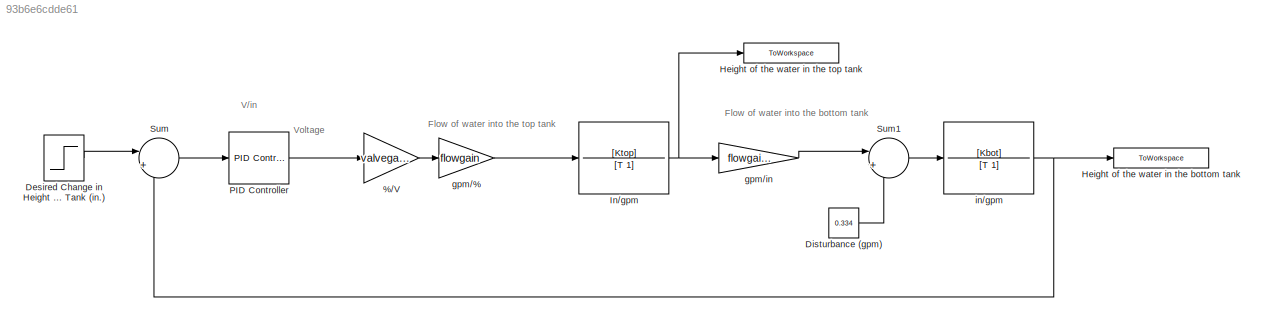
MODEL slx_93b6e6cdde61
KIND model
CONFIG AbsTol = auto
CONFIG EnableMultiTasking = off
CONFIG FixedStep = auto
CONFIG MaxStep = auto
CONFIG MinStep = auto
CONFIG RelTol = 1e-3
CONFIG SampleTimeConstraint = Unconstrained
CONFIG Solver = VariableStepAuto
CONFIG SolverName = VariableStepAuto
CONFIG StartTime = 0.0
CONFIG StopTime = tsim
BLOCK [Gain] %//V
  Gain = valvegain
BLOCK [Step] Desired Change in Height of Bottom Tank (in.)
  After = 0
  SampleTime = 0
  Time = 10
BLOCK [Constant] Disturbance (gpm)
  Value = 0.334
BLOCK [ToWorkspace] Height of the water in the bottom tank
  FixptAsFi = on
  MaxDataPoints = inf
  Ports = [1]
  SampleTime = -1
  VariableName = height_bottom
BLOCK [ToWorkspace] Height of the water in the top tank
  FixptAsFi = on
  MaxDataPoints = inf
  Ports = [1]
  SampleTime = -1
  VariableName = height_top
BLOCK [TransferFcn] In//gpm
  Denominator = [T 1]
  Numerator = [Ktop]
BLOCK [Reference] PID Controller  REF=simulink/Continuous/PID Controller
  Ports = [1, 1]
  SourceBlock = simulink/Continuous/PID Controller
  SourceProductBaseCode = SL
  SourceType = PID 1dof
BLOCK [Sum] Sum
  Inputs = |+-
  Ports = [2, 1]
BLOCK [Sum] Sum1
  Inputs = |+-
  Ports = [2, 1]
BLOCK [Gain] gpm//%
  Gain = flowgain
BLOCK [Gain] gpm//in
  Gain = flowgain2
BLOCK [TransferFcn] in//gpm
  Denominator = [T 1]
  Numerator = [Kbot]
ANNOTATION (root): Flow of water into the bottom tank
ANNOTATION (root): Flow of water into the top tank
ANNOTATION (root): V/in
ANNOTATION (root): Voltage
LINE %//V:1 -> gpm//%:1
LINE Desired Change in Height of Bottom Tank (in.):1 -> Sum:1
LINE Disturbance (gpm):1 -> Sum1:2
NET In//gpm:1 -> Height of the water in the top tank:1, gpm//in:1
LINE PID Controller:1 -> %//V:1
LINE Sum1:1 -> in//gpm:1
LINE Sum:1 -> PID Controller:1
LINE gpm//%:1 -> In//gpm:1
LINE gpm//in:1 -> Sum1:1
NET in//gpm:1 -> Height of the water in the bottom tank:1, Sum:2
note: NET lines group one-source signal fan-out (src -> all destinations, sorted); 1:1 wires keep LINE
